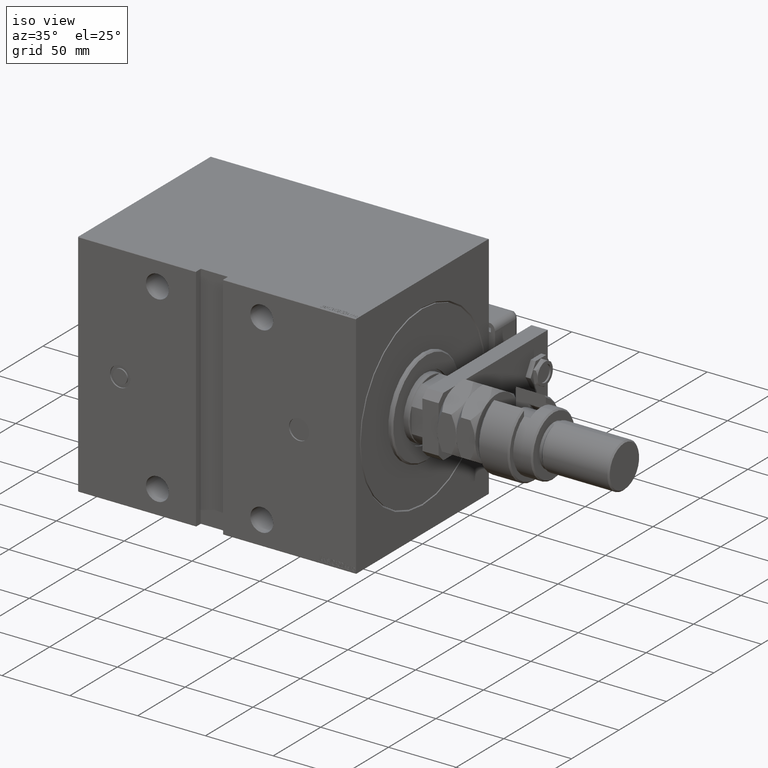
[diagram: clean part render]
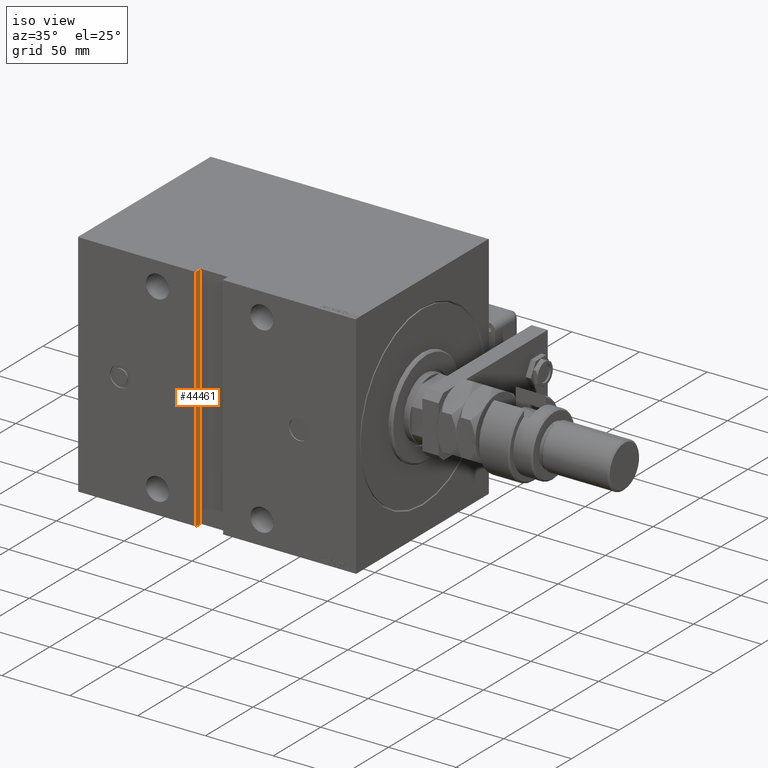
[diagram: same view with one face highlighted and labeled with its STEP entity id]
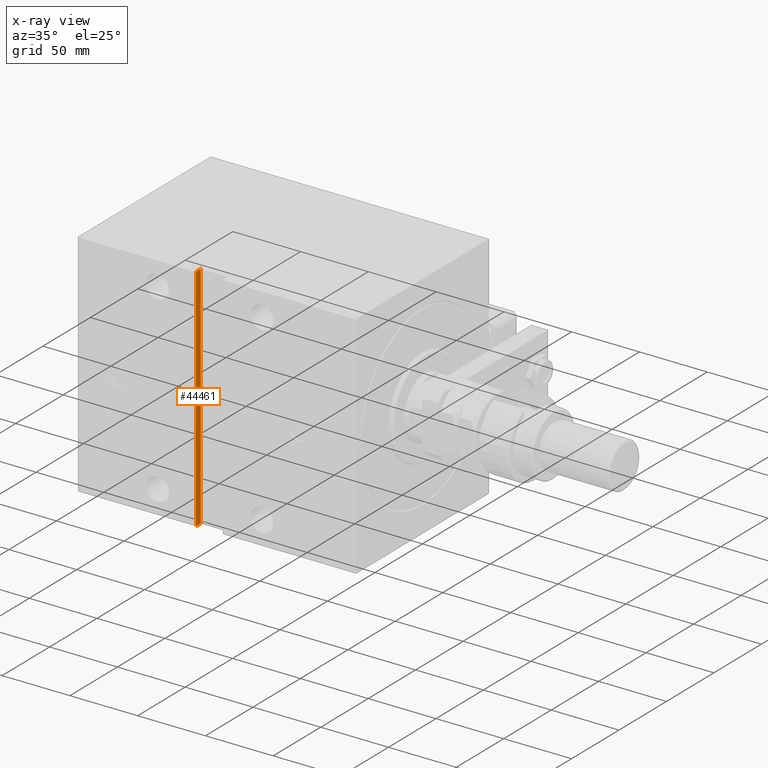
[diagram: x-ray of the same camera — body ghosted, the highlighted face saturated]
A machine part, iso view. The second image highlights one B-rep face of the part: STEP entity #44461.
The next image is the same camera in x-ray: the body ghosted, the highlighted face saturated — about 0% of this face is hidden behind the body in this view.
In plain terms, the highlighted planar face has unit normal (-1, -0, -0).
Its self-contained STEP definition (entity closure, byte-faithful):
#882 = EDGE_CURVE ( 'NONE', #31871, #28129, #59977, .T. ) ;
#2367 = LINE ( 'NONE', #16063, #38977 ) ;
#3298 = DIRECTION ( 'NONE',  ( -5.772398745160268197E-17, -0.7071067811866293962, -0.7071067811864657493 ) ) ;
#4063 = DIRECTION ( 'NONE',  ( -0.000000000000000000, 1.000000000000000000, 1.261617073437677752E-16 ) ) ;
#5259 = ORIENTED_EDGE ( 'NONE', *, *, #60024, .T. ) ;
#5728 = LINE ( 'NONE', #24715, #47279 ) ;
#5914 = ORIENTED_EDGE ( 'NONE', *, *, #40307, .F. ) ;
#9525 = DIRECTION ( 'NONE',  ( -8.163404592832031500E-17, 1.632680918566406300E-16, -1.000000000000000000 ) ) ;
#9718 = ORIENTED_EDGE ( 'NONE', *, *, #882, .T. ) ;
#10810 = CARTESIAN_POINT ( 'NONE',  ( 118.0000000000000284, 70.00000000000001421, 84.70000000000000284 ) ) ;
#14249 = CARTESIAN_POINT ( 'NONE',  ( 118.0000000000000142, 65.00000000000004263, -85.00000000000001421 ) ) ;
#16063 = CARTESIAN_POINT ( 'NONE',  ( 118.0000000000000142, 65.00000000000004263, -85.00000000000001421 ) ) ;
#17132 = VERTEX_POINT ( 'NONE', #23185 ) ;
#17856 = VECTOR ( 'NONE', #4063, 1000.000000000000000 ) ;
#19145 = VERTEX_POINT ( 'NONE', #57769 ) ;
#19176 = LINE ( 'NONE', #28183, #25180 ) ;
#22612 = LINE ( 'NONE', #41590, #54068 ) ;
#23185 = CARTESIAN_POINT ( 'NONE',  ( 118.0000000000000284, 65.00000000000001421, 85.00000000000001421 ) ) ;
#24715 = CARTESIAN_POINT ( 'NONE',  ( 118.0000000000000284, 69.70000000000004547, 85.00000000000001421 ) ) ;
#25180 = VECTOR ( 'NONE', #9525, 1000.000000000000000 ) ;
#28129 = VERTEX_POINT ( 'NONE', #32421 ) ;
#28183 = CARTESIAN_POINT ( 'NONE',  ( 118.0000000000000142, 65.00000000000004263, -85.00000000000001421 ) ) ;
#29974 = DIRECTION ( 'NONE',  ( -5.772398745161338090E-17, 0.7071067811864985009, -0.7071067811865965336 ) ) ;
#31528 = EDGE_LOOP ( 'NONE', ( #52169, #9718, #5914, #45917, #37414, #5259 ) ) ;
#31871 = VERTEX_POINT ( 'NONE', #42010 ) ;
#32421 = CARTESIAN_POINT ( 'NONE',  ( 118.0000000000000142, 69.69999999999997442, -85.00000000000001421 ) ) ;
#33851 = EDGE_CURVE ( 'NONE', #17132, #19145, #52924, .T. ) ;
#36284 = CARTESIAN_POINT ( 'NONE',  ( 118.0000000000000142, 70.00000000000002842, -84.70000000000001705 ) ) ;
#37287 = FACE_OUTER_BOUND ( 'NONE', #31528, .T. ) ;
#37414 = ORIENTED_EDGE ( 'NONE', *, *, #33851, .T. ) ;
#37681 = CARTESIAN_POINT ( 'NONE',  ( 118.0000000000000284, 65.00000000000001421, -85.00000000000000000 ) ) ;
#38977 = VECTOR ( 'NONE', #40337, 1000.000000000000000 ) ;
#40307 = EDGE_CURVE ( 'NONE', #52387, #28129, #2367, .T. ) ;
#40337 = DIRECTION ( 'NONE',  ( -0.000000000000000000, 1.000000000000000000, 1.261617073437677752E-16 ) ) ;
#41590 = CARTESIAN_POINT ( 'NONE',  ( 118.0000000000000142, 70.00000000000004263, -85.00000000000001421 ) ) ;
#42010 = CARTESIAN_POINT ( 'NONE',  ( 118.0000000000000142, 70.00000000000004263, -84.70000000000001705 ) ) ;
#42349 = CARTESIAN_POINT ( 'NONE',  ( 118.0000000000000284, 65.00000000000001421, 85.00000000000001421 ) ) ;
#44461 = ADVANCED_FACE ( 'NONE', ( #37287 ), #60974, .F. ) ;
#45917 = ORIENTED_EDGE ( 'NONE', *, *, #51378, .F. ) ;
#47279 = VECTOR ( 'NONE', #29974, 1000.000000000000114 ) ;
#48100 = EDGE_CURVE ( 'NONE', #49132, #31871, #22612, .T. ) ;
#49132 = VERTEX_POINT ( 'NONE', #10810 ) ;
#51378 = EDGE_CURVE ( 'NONE', #17132, #52387, #19176, .T. ) ;
#51611 = DIRECTION ( 'NONE',  ( -8.163404592832031500E-17, 0.000000000000000000, -1.000000000000000000 ) ) ;
#52169 = ORIENTED_EDGE ( 'NONE', *, *, #48100, .T. ) ;
#52387 = VERTEX_POINT ( 'NONE', #37681 ) ;
#52924 = LINE ( 'NONE', #42349, #17856 ) ;
#54068 = VECTOR ( 'NONE', #60600, 1000.000000000000000 ) ;
#56606 = DIRECTION ( 'NONE',  ( 1.000000000000000000, 1.029909061169644442E-32, -8.163404592832031500E-17 ) ) ;
#57769 = CARTESIAN_POINT ( 'NONE',  ( 118.0000000000000284, 69.70000000000004547, 85.00000000000001421 ) ) ;
#57846 = VECTOR ( 'NONE', #3298, 1000.000000000000000 ) ;
#58065 = AXIS2_PLACEMENT_3D ( 'NONE', #14249, #56606, #51611 ) ;
#59977 = LINE ( 'NONE', #36284, #57846 ) ;
#60024 = EDGE_CURVE ( 'NONE', #19145, #49132, #5728, .T. ) ;
#60600 = DIRECTION ( 'NONE',  ( -8.163404592832031500E-17, 1.632680918566406300E-16, -1.000000000000000000 ) ) ;
#60974 = PLANE ( 'NONE',  #58065 ) ;